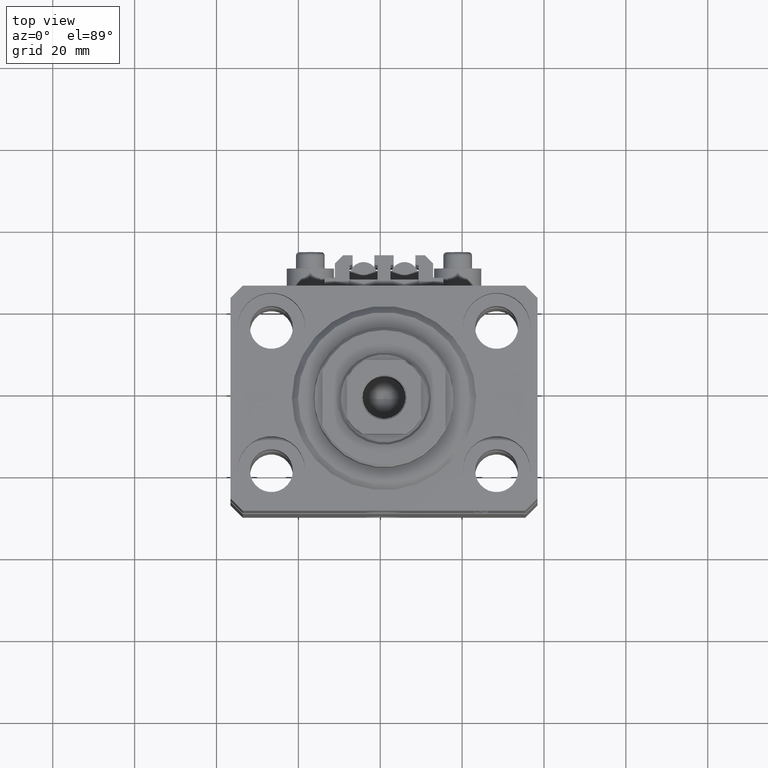
[diagram: clean part render]
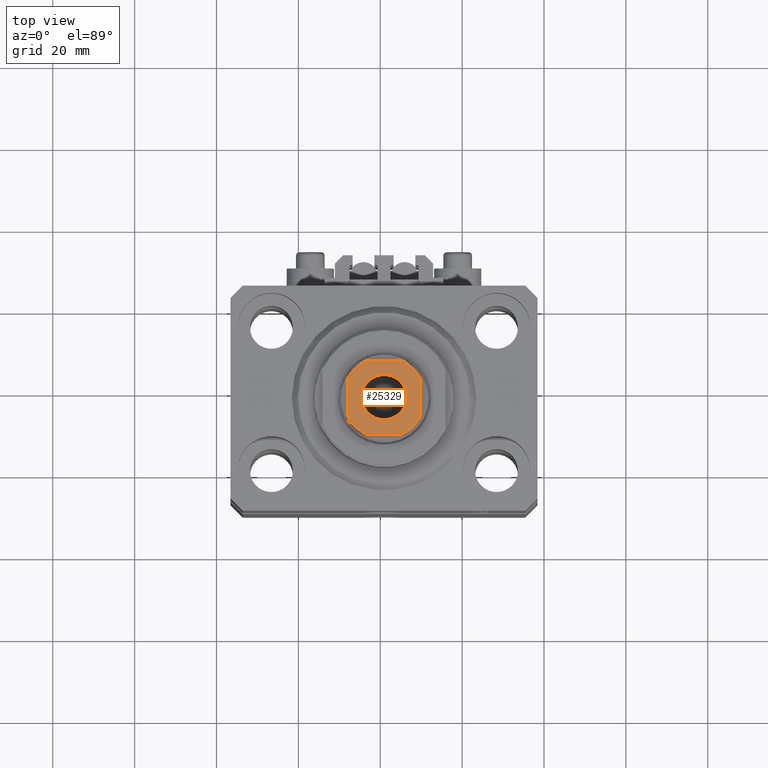
[diagram: same view with one face highlighted and labeled with its STEP entity id]
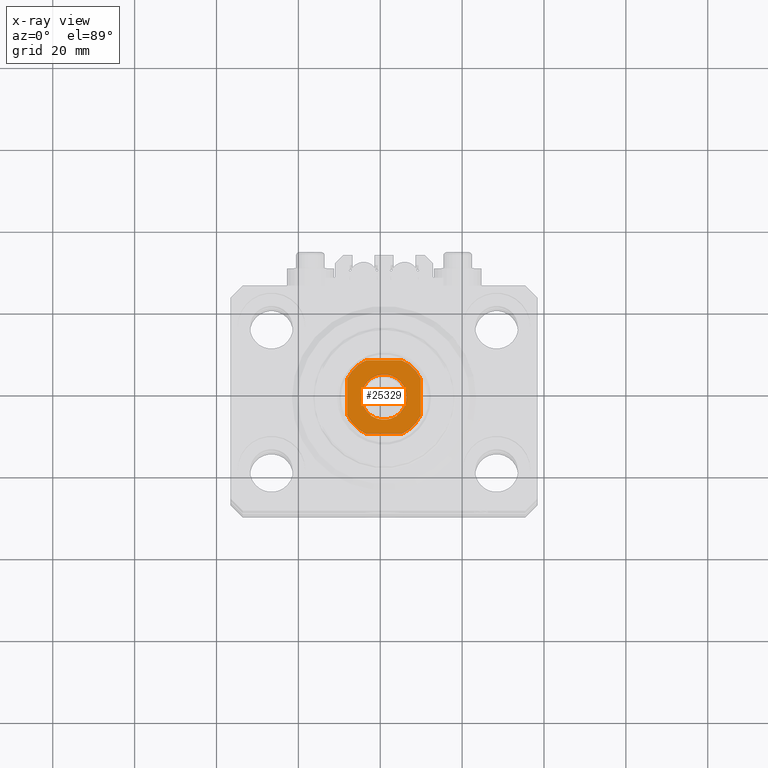
[diagram: x-ray of the same camera — body ghosted, the highlighted face saturated]
A machine part, top view. The second image highlights one B-rep face of the part: STEP entity #25329.
The next image is the same camera in x-ray: the body ghosted, the highlighted face saturated — about 0% of this face is hidden behind the body in this view.
In plain terms, the highlighted planar face has unit normal (0, 0, 1).
Its self-contained STEP definition (entity closure, byte-faithful):
#375 = PLANE ( 'NONE',  #13999 ) ;
#688 = VERTEX_POINT ( 'NONE', #25727 ) ;
#1096 = DIRECTION ( 'NONE',  ( -1.000000000000000000, -0.000000000000000000, -0.000000000000000000 ) ) ;
#1618 = LINE ( 'NONE', #37680, #32693 ) ;
#2239 = DIRECTION ( 'NONE',  ( -0.000000000000000000, 0.000000000000000000, 1.000000000000000000 ) ) ;
#2881 = DIRECTION ( 'NONE',  ( 1.000000000000000000, 0.000000000000000000, 0.000000000000000000 ) ) ;
#3175 = AXIS2_PLACEMENT_3D ( 'NONE', #43568, #6537, #2881 ) ;
#3469 = DIRECTION ( 'NONE',  ( -0.000000000000000000, 0.000000000000000000, 1.000000000000000000 ) ) ;
#4605 = ORIENTED_EDGE ( 'NONE', *, *, #21821, .T. ) ;
#5544 = VECTOR ( 'NONE', #43182, 1000.000000000000000 ) ;
#5896 = DIRECTION ( 'NONE',  ( 1.000000000000000000, 0.000000000000000000, 0.000000000000000000 ) ) ;
#6537 = DIRECTION ( 'NONE',  ( -0.000000000000000000, 0.000000000000000000, 1.000000000000000000 ) ) ;
#7014 = VERTEX_POINT ( 'NONE', #19377 ) ;
#7472 = CARTESIAN_POINT ( 'NONE',  ( 0.000000000000000000, 0.000000000000000000, 103.0999999999999943 ) ) ;
#8020 = CARTESIAN_POINT ( 'NONE',  ( 5.549999999999998934, 0.000000000000000000, 103.0999999999999943 ) ) ;
#8359 = AXIS2_PLACEMENT_3D ( 'NONE', #33197, #48061, #36369 ) ;
#8550 = DIRECTION ( 'NONE',  ( 1.000000000000000000, 0.000000000000000000, 0.000000000000000000 ) ) ;
#8591 = CIRCLE ( 'NONE', #3175, 10.00000000000000000 ) ;
#9135 = CIRCLE ( 'NONE', #8359, 5.549999999999998934 ) ;
#10764 = EDGE_LOOP ( 'NONE', ( #32251, #42738, #35435, #4605, #43001, #45536, #16118, #25200 ) ) ;
#10815 = CIRCLE ( 'NONE', #14710, 10.00000000000000000 ) ;
#11106 = EDGE_CURVE ( 'NONE', #38017, #15719, #30011, .T. ) ;
#11412 = VERTEX_POINT ( 'NONE', #34185 ) ;
#13058 = CARTESIAN_POINT ( 'NONE',  ( 9.000000000000001776, -4.358898943540675752, 103.0999999999999943 ) ) ;
#13509 = VERTEX_POINT ( 'NONE', #13058 ) ;
#13618 = VERTEX_POINT ( 'NONE', #15939 ) ;
#13999 = AXIS2_PLACEMENT_3D ( 'NONE', #22782, #47229, #43578 ) ;
#14710 = AXIS2_PLACEMENT_3D ( 'NONE', #30720, #45823, #8550 ) ;
#15342 = EDGE_CURVE ( 'NONE', #15719, #38017, #9135, .T. ) ;
#15719 = VERTEX_POINT ( 'NONE', #8020 ) ;
#15939 = CARTESIAN_POINT ( 'NONE',  ( 4.358898943540677529, 8.999999999999998224, 103.0999999999999943 ) ) ;
#16118 = ORIENTED_EDGE ( 'NONE', *, *, #29105, .T. ) ;
#17516 = FACE_BOUND ( 'NONE', #33313, .T. ) ;
#17607 = LINE ( 'NONE', #36110, #5544 ) ;
#17801 = AXIS2_PLACEMENT_3D ( 'NONE', #23124, #3469, #29290 ) ;
#19327 = EDGE_CURVE ( 'NONE', #24802, #23884, #10815, .T. ) ;
#19377 = CARTESIAN_POINT ( 'NONE',  ( -4.358898943540671311, -9.000000000000001776, 103.0999999999999943 ) ) ;
#19530 = DIRECTION ( 'NONE',  ( 9.637352644315595243E-17, -1.000000000000000000, 0.000000000000000000 ) ) ;
#20249 = CARTESIAN_POINT ( 'NONE',  ( -9.000000000000000000, 8.999999999999998224, 103.0999999999999943 ) ) ;
#21608 = DIRECTION ( 'NONE',  ( 1.000000000000000000, 0.000000000000000000, 0.000000000000000000 ) ) ;
#21821 = EDGE_CURVE ( 'NONE', #688, #13509, #41245, .T. ) ;
#22782 = CARTESIAN_POINT ( 'NONE',  ( 0.000000000000000000, 0.000000000000000000, 103.0999999999999943 ) ) ;
#23124 = CARTESIAN_POINT ( 'NONE',  ( 0.000000000000000000, 0.000000000000000000, 103.0999999999999943 ) ) ;
#23398 = AXIS2_PLACEMENT_3D ( 'NONE', #24653, #2239, #5896 ) ;
#23884 = VERTEX_POINT ( 'NONE', #33910 ) ;
#24653 = CARTESIAN_POINT ( 'NONE',  ( 0.000000000000000000, 0.000000000000000000, 103.0999999999999943 ) ) ;
#24802 = VERTEX_POINT ( 'NONE', #31223 ) ;
#25200 = ORIENTED_EDGE ( 'NONE', *, *, #19327, .T. ) ;
#25329 = ADVANCED_FACE ( 'NONE', ( #17516, #32367 ), #375, .T. ) ;
#25669 = EDGE_CURVE ( 'NONE', #11412, #7014, #31951, .T. ) ;
#25727 = CARTESIAN_POINT ( 'NONE',  ( 4.358898943540671311, -9.000000000000001776, 103.0999999999999943 ) ) ;
#25990 = VECTOR ( 'NONE', #19530, 1000.000000000000000 ) ;
#27198 = DIRECTION ( 'NONE',  ( -9.637352644315595243E-17, 1.000000000000000000, -0.000000000000000000 ) ) ;
#29105 = EDGE_CURVE ( 'NONE', #13618, #24802, #41776, .T. ) ;
#29290 = DIRECTION ( 'NONE',  ( 1.000000000000000000, 0.000000000000000000, 0.000000000000000000 ) ) ;
#30011 = CIRCLE ( 'NONE', #35439, 5.549999999999998934 ) ;
#30720 = CARTESIAN_POINT ( 'NONE',  ( 0.000000000000000000, 0.000000000000000000, 103.0999999999999943 ) ) ;
#31223 = CARTESIAN_POINT ( 'NONE',  ( -4.358898943540678417, 8.999999999999998224, 103.0999999999999943 ) ) ;
#31951 = CIRCLE ( 'NONE', #23398, 10.00000000000000000 ) ;
#32251 = ORIENTED_EDGE ( 'NONE', *, *, #43338, .T. ) ;
#32367 = FACE_OUTER_BOUND ( 'NONE', #10764, .T. ) ;
#32566 = DIRECTION ( 'NONE',  ( 0.000000000000000000, -0.000000000000000000, -1.000000000000000000 ) ) ;
#32693 = VECTOR ( 'NONE', #27198, 1000.000000000000000 ) ;
#33197 = CARTESIAN_POINT ( 'NONE',  ( 0.000000000000000000, 0.000000000000000000, 103.0999999999999943 ) ) ;
#33313 = EDGE_LOOP ( 'NONE', ( #39491, #36296 ) ) ;
#33910 = CARTESIAN_POINT ( 'NONE',  ( -9.000000000000000000, 4.358898943540674864, 103.0999999999999943 ) ) ;
#34185 = CARTESIAN_POINT ( 'NONE',  ( -9.000000000000000000, -4.358898943540675752, 103.0999999999999943 ) ) ;
#34463 = CARTESIAN_POINT ( 'NONE',  ( -9.000000000000000000, 8.999999999999998224, 103.0999999999999943 ) ) ;
#34831 = EDGE_CURVE ( 'NONE', #7014, #688, #17607, .T. ) ;
#35435 = ORIENTED_EDGE ( 'NONE', *, *, #34831, .T. ) ;
#35439 = AXIS2_PLACEMENT_3D ( 'NONE', #7472, #32566, #21608 ) ;
#35579 = VERTEX_POINT ( 'NONE', #35760 ) ;
#35710 = EDGE_CURVE ( 'NONE', #13509, #35579, #1618, .T. ) ;
#35760 = CARTESIAN_POINT ( 'NONE',  ( 9.000000000000000000, 4.358898943540675752, 103.0999999999999943 ) ) ;
#36110 = CARTESIAN_POINT ( 'NONE',  ( -8.999999999999998224, -9.000000000000001776, 103.0999999999999943 ) ) ;
#36296 = ORIENTED_EDGE ( 'NONE', *, *, #11106, .T. ) ;
#36369 = DIRECTION ( 'NONE',  ( 1.000000000000000000, 0.000000000000000000, 0.000000000000000000 ) ) ;
#36413 = EDGE_CURVE ( 'NONE', #35579, #13618, #8591, .T. ) ;
#37680 = CARTESIAN_POINT ( 'NONE',  ( 9.000000000000000000, 8.999999999999998224, 103.0999999999999943 ) ) ;
#38017 = VERTEX_POINT ( 'NONE', #40457 ) ;
#39491 = ORIENTED_EDGE ( 'NONE', *, *, #15342, .T. ) ;
#40457 = CARTESIAN_POINT ( 'NONE',  ( -5.549999999999998934, 6.796789735267809794E-16, 103.0999999999999943 ) ) ;
#41245 = CIRCLE ( 'NONE', #17801, 10.00000000000000000 ) ;
#41776 = LINE ( 'NONE', #34463, #47372 ) ;
#42738 = ORIENTED_EDGE ( 'NONE', *, *, #25669, .T. ) ;
#43001 = ORIENTED_EDGE ( 'NONE', *, *, #35710, .T. ) ;
#43182 = DIRECTION ( 'NONE',  ( 1.000000000000000000, 0.000000000000000000, 0.000000000000000000 ) ) ;
#43338 = EDGE_CURVE ( 'NONE', #23884, #11412, #46064, .T. ) ;
#43568 = CARTESIAN_POINT ( 'NONE',  ( 0.000000000000000000, 0.000000000000000000, 103.0999999999999943 ) ) ;
#43578 = DIRECTION ( 'NONE',  ( 1.000000000000000000, 0.000000000000000000, 0.000000000000000000 ) ) ;
#45536 = ORIENTED_EDGE ( 'NONE', *, *, #36413, .T. ) ;
#45823 = DIRECTION ( 'NONE',  ( -0.000000000000000000, 0.000000000000000000, 1.000000000000000000 ) ) ;
#46064 = LINE ( 'NONE', #20249, #25990 ) ;
#47229 = DIRECTION ( 'NONE',  ( -0.000000000000000000, 0.000000000000000000, 1.000000000000000000 ) ) ;
#47372 = VECTOR ( 'NONE', #1096, 1000.000000000000000 ) ;
#48061 = DIRECTION ( 'NONE',  ( 0.000000000000000000, -0.000000000000000000, -1.000000000000000000 ) ) ;